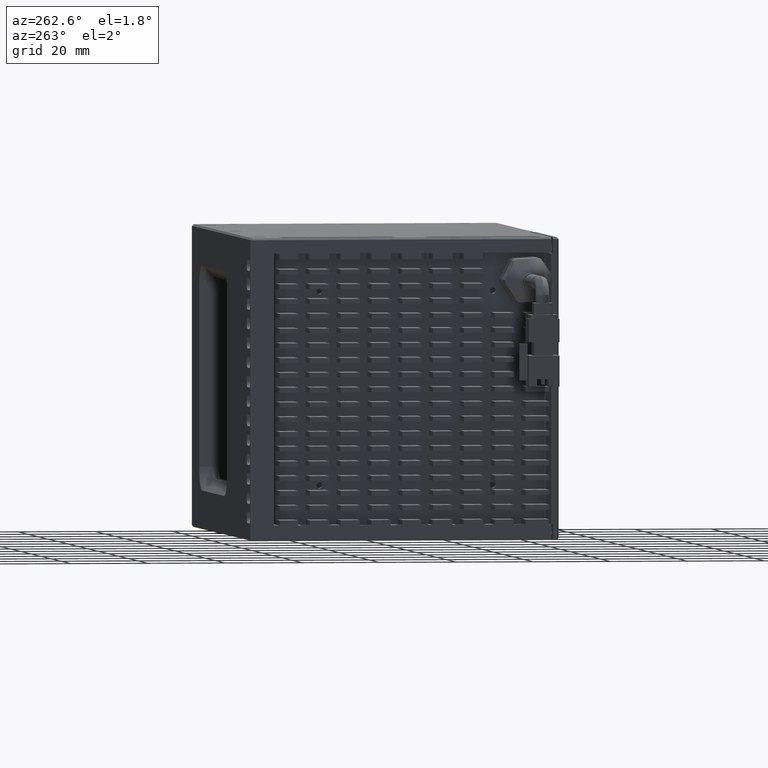
[diagram: clean part render]
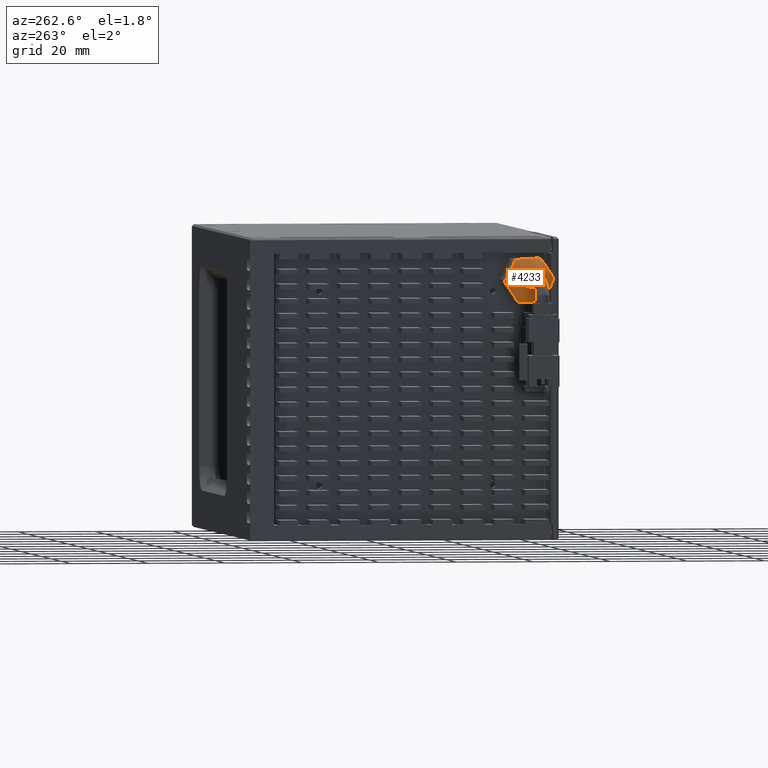
[diagram: same view with one face highlighted and labeled with its STEP entity id]
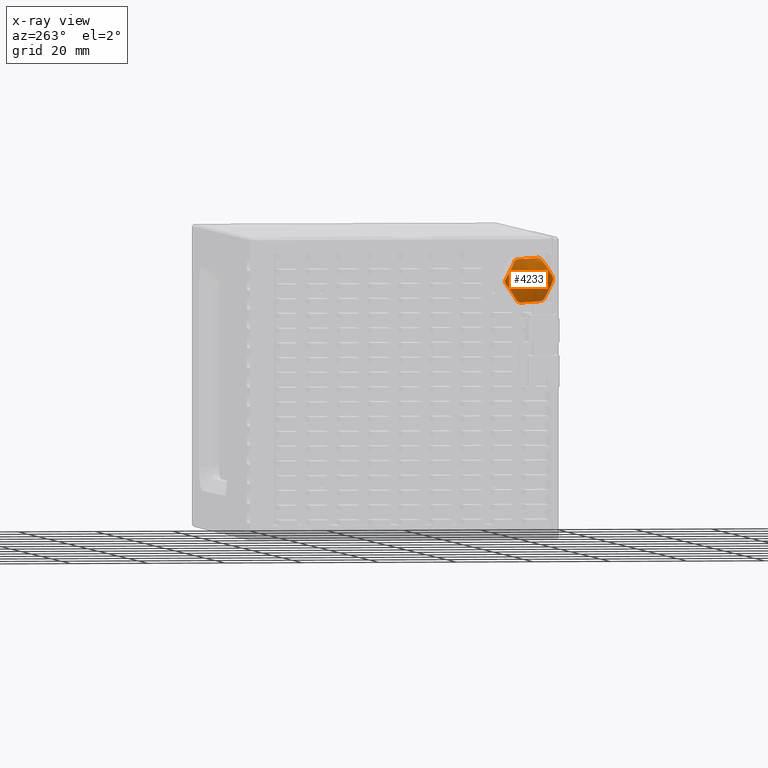
[diagram: x-ray of the same camera — body ghosted, the highlighted face saturated]
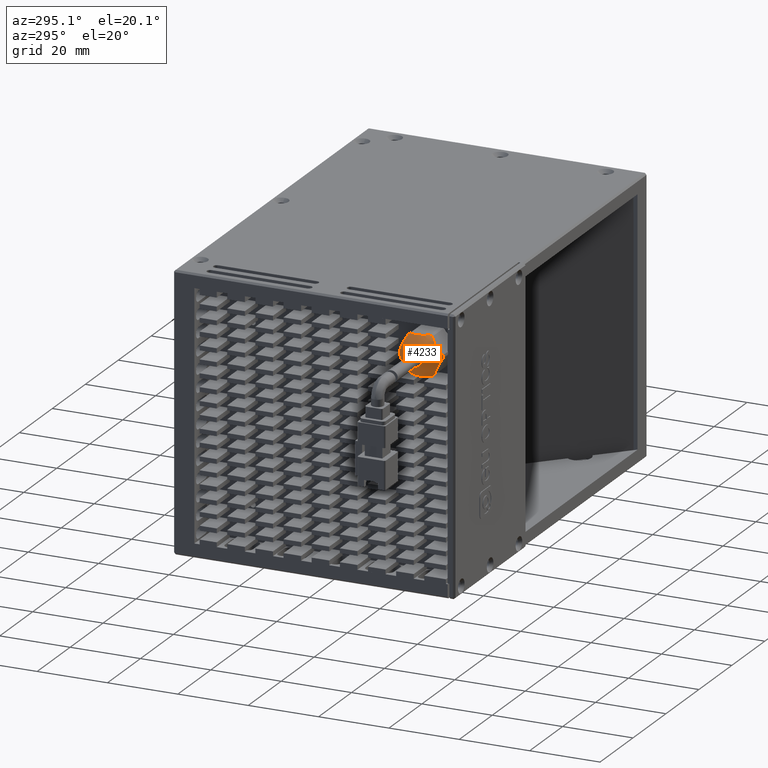
[diagram: same view with one face highlighted and labeled with its STEP entity id]
A machine part, auxiliary view. The second image highlights one B-rep face of the part: STEP entity #4233.
The next image is the same camera in x-ray: the body ghosted, the highlighted face saturated — about 17% of this face is hidden behind the body in this view.
A second angle (auxiliary view) of the same face is appended — the face is thin or edge-on in the first view.
In plain terms, the highlighted face is a freeform B-spline surface patch.
Its self-contained STEP definition (entity closure, byte-faithful):
#64 = CARTESIAN_POINT ( 'NONE',  ( -76.75381554869528600, -14.72422521989893000, 64.28832888612045300 ) ) ;
#99 = CARTESIAN_POINT ( 'NONE',  ( -76.44769987294911600, -4.050178072075575600, 67.97234626228846800 ) ) ;
#192 = CARTESIAN_POINT ( 'NONE',  ( -76.65690864948511800, -4.611442638793816300, 64.71588004137582600 ) ) ;
#1780 = EDGE_CURVE ( 'NONE', #69063, #52017, #67145, .T. ) ;
#2337 = DIRECTION ( 'NONE',  ( 1.000000000000000000, -4.890937612370272100E-029, 2.051038353574630100E-029 ) ) ;
#2984 = CARTESIAN_POINT ( 'NONE',  ( -76.73457749291901600, -8.969751151191921700, 72.55732502948490000 ) ) ;
#3228 = CARTESIAN_POINT ( 'NONE',  ( -75.85005730159738800, -7.404198714176359000, 61.23496465845508400 ) ) ;
#3353 = CARTESIAN_POINT ( 'NONE',  ( -75.85005730159738800, -6.032367455828099500, 71.97300819527390600 ) ) ;
#3457 = CARTESIAN_POINT ( 'NONE',  ( -76.60025685661690900, -11.39073852011430300, 61.48879279891314600 ) ) ;
#3516 = CARTESIAN_POINT ( 'NONE',  ( -76.65755512417865700, -13.93713603149063800, 70.91841594247139800 ) ) ;
#4233 = ADVANCED_FACE ( 'NONE', ( #4466, #31996 ), #42853, .T. ) ;
#4307 = CARTESIAN_POINT ( 'NONE',  ( -75.85005730159738800, -9.818089248277848600, 67.00000000000957800 ) ) ;
#4378 = CARTESIAN_POINT ( 'NONE',  ( -74.10379265457416400, -9.826900781596521000, 74.02239375570948700 ) ) ;
#4466 = FACE_BOUND ( 'NONE', #30105, .T. ) ;
#4614 = CARTESIAN_POINT ( 'NONE',  ( -76.56586692776141900, -13.93695367904388500, 71.98600493894630900 ) ) ;
#4861 = CARTESIAN_POINT ( 'NONE',  ( -74.10379265457439100, -9.809277714959208100, 59.97760624430888800 ) ) ;
#5001 = VERTEX_POINT ( 'NONE', #50875 ) ;
#5198 = ORIENTED_EDGE ( 'NONE', *, *, #29848, .F. ) ;
#5540 = CARTESIAN_POINT ( 'NONE',  ( -76.73457749291890200, -15.05504294943386500, 64.95601982834591600 ) ) ;
#5587 = CARTESIAN_POINT ( 'NONE',  ( -76.12654354366910100, -3.751368091434554000, 67.36925670659553600 ) ) ;
#5683 = CARTESIAN_POINT ( 'NONE',  ( -76.75381554869513000, -5.016645191130634500, 64.10699717110908600 ) ) ;
#7324 = ORIENTED_EDGE ( 'NONE', *, *, #9575, .T. ) ;
#8479 = CARTESIAN_POINT ( 'NONE',  ( -76.60025685661706500, -8.245439976440694700, 72.51120720110499500 ) ) ;
#8605 = ORIENTED_EDGE ( 'NONE', *, *, #21777, .T. ) ;
#8634 = CARTESIAN_POINT ( 'NONE',  ( -75.85005730159738800, -9.818089248277848600, 67.00000000000957800 ) ) ;
#8706 = DIRECTION ( 'NONE',  ( 1.000000000000000000, -4.890937612370272100E-029, 2.051038353574630100E-029 ) ) ;
#8771 = CARTESIAN_POINT ( 'NONE',  ( -76.14389294472809400, -15.79431419853827400, 68.12770308435284500 ) ) ;
#8853 = CIRCLE ( 'NONE', #26751, 6.249999999999514200 ) ;
#8949 = CARTESIAN_POINT ( 'NONE',  ( -76.35171132334814100, -12.09128849759717100, 61.53339772116110100 ) ) ;
#9015 = CARTESIAN_POINT ( 'NONE',  ( -76.44769987294888800, -13.54412140078687600, 71.50898447423324500 ) ) ;
#9575 = EDGE_CURVE ( 'NONE', #58879, #14542, #37052, .T. ) ;
#9803 = DIRECTION ( 'NONE',  ( 0.0000000000000000000, 0.4439600393527282600, -0.8960465855400175900 ) ) ;
#10128 = CARTESIAN_POINT ( 'NONE',  ( -77.06815567162952600, -4.410047738914443000, 73.15869144026324000 ) ) ;
#10868 = CARTESIAN_POINT ( 'NONE',  ( -75.85005730159738800, -6.032367455828099500, 71.97300819527390600 ) ) ;
#11076 = CARTESIAN_POINT ( 'NONE',  ( -76.60025685661689500, -15.37725932586498900, 65.60635062011520800 ) ) ;
#11097 = EDGE_CURVE ( 'NONE', #24467, #60753, #52148, .T. ) ;
#11099 = CARTESIAN_POINT ( 'NONE',  ( -75.85005730159738800, -3.568089282679255200, 66.99934424549553600 ) ) ;
#11191 = CARTESIAN_POINT ( 'NONE',  ( -76.73457749291880200, -5.429473644207075900, 63.48665514219698000 ) ) ;
#11691 = DIRECTION ( 'NONE',  ( 1.000000000000000000, -4.890937612370272100E-029, 2.051038353574630100E-029 ) ) ;
#11856 = CIRCLE ( 'NONE', #50832, 1.999999999999998400 ) ;
#12847 = AXIS2_PLACEMENT_3D ( 'NONE', #44584, #11691, #50140 ) ;
#14061 = CARTESIAN_POINT ( 'NONE',  ( -76.35171132334807000, -7.544889998957438900, 72.46660227885695300 ) ) ;
#14211 = DIRECTION ( 'NONE',  ( 0.0000000000000000000, 0.4439600393527247100, -0.8960465855400193700 ) ) ;
#14542 = VERTEX_POINT ( 'NONE', #22704 ) ;
#14549 = CARTESIAN_POINT ( 'NONE',  ( -75.99697512316296900, -12.74245834217448700, 61.57485854654284900 ) ) ;
#14609 = CARTESIAN_POINT ( 'NONE',  ( -76.12654354366866000, -13.17123551512016800, 72.06930628621934400 ) ) ;
#15711 = CARTESIAN_POINT ( 'NONE',  ( -83.06947262256238700, -14.42831988906798600, 68.19498467567795800 ) ) ;
#16411 = CARTESIAN_POINT ( 'NONE',  ( -76.65690864948516000, -5.236660034068496100, 70.36702825303390800 ) ) ;
#16571 = VERTEX_POINT ( 'NONE', #35816 ) ;
#16597 = CARTESIAN_POINT ( 'NONE',  ( -76.35171132334795600, -15.68890531880590100, 66.23534715836012800 ) ) ;
#16729 = CARTESIAN_POINT ( 'NONE',  ( -76.60025685661700800, -5.831568442526862100, 62.88244217880780000 ) ) ;
#16830 = ORIENTED_EDGE ( 'NONE', *, *, #58387, .T. ) ;
#17557 = CARTESIAN_POINT ( 'NONE',  ( -75.85005730159738800, -7.043339002323511600, 61.39970884038490300 ) ) ;
#18639 = CIRCLE ( 'NONE', #57304, 1.999999999999998400 ) ;
#19278 = B_SPLINE_CURVE_WITH_KNOTS ( 'NONE', 3,
 ( #22028, #54994, #66021, #33085, #192, #38614, #5683, #44103, #11191, #49668, #16729, #55233, #22268, #60737, #27815, #66252 ),
 .UNSPECIFIED., .F., .F.,
 ( 4, 2, 2, 2, 2, 2, 2, 4 ),
 ( 3.503886463667254900E-016, 0.001475511169496304000, 0.002213266754244273600, 0.002951022338992243300, 0.003688777923740212600, 0.004426533508488182000, 0.005164289093236152200, 0.005902044677984121500 ),
 .UNSPECIFIED. ) ;
#19379 = ORIENTED_EDGE ( 'NONE', *, *, #62990, .T. ) ;
#19529 = CARTESIAN_POINT ( 'NONE',  ( -75.99697512316277000, -6.893720154380086600, 72.42514145347522000 ) ) ;
#19787 = CARTESIAN_POINT ( 'NONE',  ( -76.59876150532831200, -8.951269078246145500, 61.33346862750728700 ) ) ;
#20082 = CARTESIAN_POINT ( 'NONE',  ( -75.85005730159738800, -12.94252133100853500, 72.41298662112708900 ) ) ;
#20200 = ORIENTED_EDGE ( 'NONE', *, *, #50567, .F. ) ;
#20238 = VERTEX_POINT ( 'NONE', #65461 ) ;
#21209 = CARTESIAN_POINT ( 'NONE',  ( -77.06815567162966800, -1.641939032934806300, 67.57180493125960700 ) ) ;
#21482 = DIRECTION ( 'NONE',  ( 1.000000000000000000, -4.890937612370272100E-029, 2.051038353574630100E-029 ) ) ;
#21777 = EDGE_CURVE ( 'NONE', #31689, #16571, #64177, .T. ) ;
#21900 = CARTESIAN_POINT ( 'NONE',  ( -76.14389294472826500, -13.78282124237601100, 62.38828891652531900 ) ) ;
#21933 = CARTESIAN_POINT ( 'NONE',  ( -76.75381554869520100, -4.911953276656611900, 69.71167111389840400 ) ) ;
#22028 = CARTESIAN_POINT ( 'NONE',  ( -75.85005730159738800, -3.618476921725866500, 66.20797285371894200 ) ) ;
#22134 = CARTESIAN_POINT ( 'NONE',  ( -75.99697512316277000, -15.97858411305205800, 66.82000719863323500 ) ) ;
#22268 = CARTESIAN_POINT ( 'NONE',  ( -76.35171132334825500, -6.220472427068908200, 62.29805056281093600 ) ) ;
#22704 = CARTESIAN_POINT ( 'NONE',  ( -75.85005730159738800, -12.23197978238103200, 72.76503534156312000 ) ) ;
#23201 = CARTESIAN_POINT ( 'NONE',  ( -75.85005730159738800, -6.693657165545441300, 61.58701337889276300 ) ) ;
#24263 = ORIENTED_EDGE ( 'NONE', *, *, #40021, .T. ) ;
#24467 = VERTEX_POINT ( 'NONE', #3353 ) ;
#24623 = AXIS2_PLACEMENT_3D ( 'NONE', #31287, #69749, #36806 ) ;
#24845 = CARTESIAN_POINT ( 'NONE',  ( -76.59876150532829800, -10.68490941831014900, 72.66653137251083200 ) ) ;
#24932 = AXIS2_PLACEMENT_3D ( 'NONE', #8634, #47083, #14211 ) ;
#25019 = EDGE_CURVE ( 'NONE', #24467, #66653, #64542, .T. ) ;
#25336 = CARTESIAN_POINT ( 'NONE',  ( -76.73419157656660200, -9.677904893839278000, 61.37973446877331400 ) ) ;
#25402 = CARTESIAN_POINT ( 'NONE',  ( -76.65690864948534500, -15.02473585776141000, 69.28411995864213700 ) ) ;
#25467 = CARTESIAN_POINT ( 'NONE',  ( -75.85005730159738800, -12.94252133100853500, 72.41298662112708900 ) ) ;
#25530 = ORIENTED_EDGE ( 'NONE', *, *, #57566, .T. ) ;
#26751 = AXIS2_PLACEMENT_3D ( 'NONE', #32562, #71027, #38056 ) ;
#26773 = CARTESIAN_POINT ( 'NONE',  ( -83.06947262256262800, -11.66021118308860100, 62.60809816667423200 ) ) ;
#27030 = AXIS2_PLACEMENT_3D ( 'NONE', #4307, #42758, #9803 ) ;
#27446 = CARTESIAN_POINT ( 'NONE',  ( -76.59876150532845400, -14.29203928318970400, 63.41604602599807100 ) ) ;
#27481 = CARTESIAN_POINT ( 'NONE',  ( -76.73457749291895900, -4.581135547121684600, 69.04398017167294200 ) ) ;
#27815 = CARTESIAN_POINT ( 'NONE',  ( -75.99697512316309700, -6.581963477400106100, 61.75485134791938400 ) ) ;
#28189 = ORIENTED_EDGE ( 'NONE', *, *, #1780, .F. ) ;
#29424 = AXIS2_PLACEMENT_3D ( 'NONE', #35263, #2337, #40791 ) ;
#29848 = EDGE_CURVE ( 'NONE', #33756, #16571, #64436, .T. ) ;
#30055 = VERTEX_POINT ( 'NONE', #17557 ) ;
#30105 = EDGE_LOOP ( 'NONE', ( #16830, #19379 ) ) ;
#30390 = CARTESIAN_POINT ( 'NONE',  ( -76.73419157656678600, -9.958273602716657200, 72.62026553124482600 ) ) ;
#30688 = CARTESIAN_POINT ( 'NONE',  ( -76.36751272167666100, -15.55160160601062100, 68.49241830920981000 ) ) ;
#30876 = CARTESIAN_POINT ( 'NONE',  ( -76.75422238075431400, -10.41735322456618100, 61.42681609943306900 ) ) ;
#30926 = CARTESIAN_POINT ( 'NONE',  ( -76.75381554869540000, -14.61953330542437800, 69.89300282890923200 ) ) ;
#31287 = CARTESIAN_POINT ( 'NONE',  ( -75.85005730159738800, -9.818089248277848600, 67.00000000000957800 ) ) ;
#31465 = CARTESIAN_POINT ( 'NONE',  ( -75.85005730159738800, -16.01770157482995700, 67.79202714629809600 ) ) ;
#31689 = VERTEX_POINT ( 'NONE', #53864 ) ;
#31996 = FACE_OUTER_BOUND ( 'NONE', #70539, .T. ) ;
#32249 = B_SPLINE_CURVE_WITH_KNOTS ( 'NONE', 3,
 ( #46662, #52249, #57815, #24845, #63310, #30390, #68826, #35904, #2984, #41435, #8479, #46917, #14061, #52493, #19529, #58047 ),
 .UNSPECIFIED., .F., .F.,
 ( 4, 2, 2, 2, 2, 2, 2, 4 ),
 ( 2.221529986854170700E-017, 0.001475511169496778900, 0.002213266754245153900, 0.002951022338993528800, 0.003688777923741902700, 0.004426533508490278400, 0.005164289093238651900, 0.005902044677987026300 ),
 .UNSPECIFIED. ) ;
#32253 = CARTESIAN_POINT ( 'NONE',  ( -74.10379265457440600, -4.236286113132960600, 62.73883050517483900 ) ) ;
#32562 = CARTESIAN_POINT ( 'NONE',  ( -75.85005730159738800, -9.818089248277848600, 67.00000000000957800 ) ) ;
#32728 = DIRECTION ( 'NONE',  ( 1.000000000000000000, -4.890937612370272100E-029, 2.051038353574630100E-029 ) ) ;
#32758 = CARTESIAN_POINT ( 'NONE',  ( -76.14389294472803700, -5.853357254179398300, 71.61171108349331900 ) ) ;
#32952 = CARTESIAN_POINT ( 'NONE',  ( -76.73419157656673000, -14.61528979712260300, 64.06846402223449400 ) ) ;
#32993 = CARTESIAN_POINT ( 'NONE',  ( -76.60025685661703700, -4.258919170690570700, 68.39364937990360700 ) ) ;
#33085 = CARTESIAN_POINT ( 'NONE',  ( -76.59876150532825500, -4.477319043333601200, 64.91742260151853800 ) ) ;
#33756 = VERTEX_POINT ( 'NONE', #57705 ) ;
#34010 = B_SPLINE_CURVE_WITH_KNOTS ( 'NONE', 3,
 ( #52790, #8771, #30688, #58349, #25402, #63877, #30926, #69388, #36446, #3516, #41968, #9015, #47475, #14609, #53022, #20082 ),
 .UNSPECIFIED., .F., .F.,
 ( 4, 2, 2, 2, 2, 2, 2, 4 ),
 ( 1.316562550716262900E-016, 0.001475511169496855000, 0.002213266754245232900, 0.002951022338993611200, 0.003688777923741989000, 0.004426533508490366900, 0.005164289093238745600, 0.005902044677987123400 ),
 .UNSPECIFIED. ) ;
#34128 = EDGE_CURVE ( 'NONE', #31689, #30055, #35624, .T. ) ;
#35263 = CARTESIAN_POINT ( 'NONE',  ( -75.85005730159738800, -9.818089248277848600, 67.00000000000957800 ) ) ;
#35318 = ORIENTED_EDGE ( 'NONE', *, *, #55921, .F. ) ;
#35624 = CIRCLE ( 'NONE', #12847, 6.249999999999515900 ) ;
#35816 = CARTESIAN_POINT ( 'NONE',  ( -75.85005730159738800, -12.94365713114399000, 61.58766913340578200 ) ) ;
#35904 = CARTESIAN_POINT ( 'NONE',  ( -76.75422238075458400, -9.218825271989324200, 72.57318390058496500 ) ) ;
#36390 = CARTESIAN_POINT ( 'NONE',  ( -76.65755512417852900, -11.15201360543692000, 61.47359287513879200 ) ) ;
#36446 = CARTESIAN_POINT ( 'NONE',  ( -76.73457749291901600, -14.20670485234773000, 70.51334485782166400 ) ) ;
#36806 = DIRECTION ( 'NONE',  ( 0.0000000000000000000, 0.4439600393527147200, -0.8960465855400242500 ) ) ;
#36810 = ORIENTED_EDGE ( 'NONE', *, *, #71123, .T. ) ;
#37001 = ORIENTED_EDGE ( 'NONE', *, *, #34128, .F. ) ;
#37052 = CIRCLE ( 'NONE', #27030, 6.249999999999514200 ) ;
#37521 = CARTESIAN_POINT ( 'NONE',  ( -79.08198799589982300, -10.70600932698303300, 68.79209317108907800 ) ) ;
#37529 = CARTESIAN_POINT ( 'NONE',  ( -76.56586692776141900, -11.28983948597474900, 73.29755831160703400 ) ) ;
#37774 = CARTESIAN_POINT ( 'NONE',  ( -76.56586692776195900, -8.346339010580814800, 60.70244168841143300 ) ) ;
#38056 = DIRECTION ( 'NONE',  ( 0.0000000000000000000, 0.4439600393527282600, -0.8960465855400175900 ) ) ;
#38471 = CARTESIAN_POINT ( 'NONE',  ( -76.75422238075435600, -14.94424007428330700, 64.73238587676006300 ) ) ;
#38512 = CARTESIAN_POINT ( 'NONE',  ( -76.35171132334822600, -3.947273177749614600, 67.76465284165865900 ) ) ;
#38614 = CARTESIAN_POINT ( 'NONE',  ( -76.73419157656655900, -4.880704344993992200, 64.31127044654826400 ) ) ;
#39126 = ORIENTED_EDGE ( 'NONE', *, *, #11097, .T. ) ;
#39537 = VERTEX_POINT ( 'NONE', #23201 ) ;
#40021 = EDGE_CURVE ( 'NONE', #33756, #52017, #70658, .T. ) ;
#40791 = DIRECTION ( 'NONE',  ( 0.0000000000000000000, 0.4439600393527407000, -0.8960465855400112600 ) ) ;
#41435 = CARTESIAN_POINT ( 'NONE',  ( -76.65755512417871400, -8.484164891118217300, 72.52640712487934100 ) ) ;
#41654 = CARTESIAN_POINT ( 'NONE',  ( -79.08198799589982300, -9.818089248277576800, 67.00000000000903800 ) ) ;
#41906 = CARTESIAN_POINT ( 'NONE',  ( -76.44769987294898800, -11.85996827196995300, 61.51866926350621900 ) ) ;
#41968 = CARTESIAN_POINT ( 'NONE',  ( -76.60025685661698000, -13.80461005402773400, 71.11755782121119300 ) ) ;
#42533 = CIRCLE ( 'NONE', #24932, 6.249999999999517700 ) ;
#42758 = DIRECTION ( 'NONE',  ( -1.000000000000000000, 4.890937612370272100E-029, -2.051038353574630100E-029 ) ) ;
#42853 =( BOUNDED_SURFACE ( )  B_SPLINE_SURFACE ( 3, 3, ( 
 ( #4378, #37529, #4614, #43076 ),
 ( #10128, #48586, #15711, #54142 ),
 ( #21209, #59681, #26773, #65189 ),
 ( #32253, #70744, #37774, #4861 ) ),
 .UNSPECIFIED., .F., .F., .F. ) 
 B_SPLINE_SURFACE_WITH_KNOTS ( ( 4, 4 ),
 ( 4, 4 ),
 ( 0.0000000000000000000, 1.000000000000000000 ),
 ( 0.0000000000000000000, 1.000000000000000000 ),
 .UNSPECIFIED. ) 
 GEOMETRIC_REPRESENTATION_ITEM ( )  RATIONAL_B_SPLINE_SURFACE ( (
 ( 1.000000000000000000, 0.7017694484579010100, 0.7017694484579010100, 1.000000000000000000),
 ( 0.6732171387617810200, 0.4724432201612612800, 0.4724432201612612800, 0.6732171387617810200),
 ( 0.6732171387617810200, 0.4724432201612612800, 0.4724432201612612800, 0.6732171387617810200),
 ( 1.000000000000000000, 0.7017694484579010100, 0.7017694484579010100, 1.000000000000000000) ) ) 
 REPRESENTATION_ITEM ( '' )  SURFACE ( )  );
#43076 = CARTESIAN_POINT ( 'NONE',  ( -74.10379265457416400, -15.39989238342211100, 71.26116949484385500 ) ) ;
#43979 = CARTESIAN_POINT ( 'NONE',  ( -76.65755512417857200, -15.27106038865041900, 65.39200881760110900 ) ) ;
#44019 = CARTESIAN_POINT ( 'NONE',  ( -75.99697512316299700, -3.657594383503355300, 67.17999280138532500 ) ) ;
#44103 = CARTESIAN_POINT ( 'NONE',  ( -76.75422238075428500, -5.291202398560338700, 63.69443022268256300 ) ) ;
#44584 = CARTESIAN_POINT ( 'NONE',  ( -75.85005730159738800, -9.818089248277848600, 67.00000000000957800 ) ) ;
#46662 = CARTESIAN_POINT ( 'NONE',  ( -75.85005730159738800, -12.23197978238103200, 72.76503534156312000 ) ) ;
#46917 = CARTESIAN_POINT ( 'NONE',  ( -76.44769987294903000, -7.776210224584779100, 72.48133073651186500 ) ) ;
#47083 = DIRECTION ( 'NONE',  ( 1.000000000000000000, -4.890937612370272100E-029, 2.051038353574630100E-029 ) ) ;
#47167 = DIRECTION ( 'NONE',  ( 0.0000000000000000000, -0.4439600393527282100, 0.8960465855400174800 ) ) ;
#47413 = CARTESIAN_POINT ( 'NONE',  ( -76.12654354366910100, -12.53166413827742300, 61.56143700721322900 ) ) ;
#47475 = CARTESIAN_POINT ( 'NONE',  ( -76.35171132334792800, -13.41570606948550700, 71.70194943720828500 ) ) ;
#48586 = CARTESIAN_POINT ( 'NONE',  ( -83.06947262256238700, -7.975967313467037000, 71.39190183334459100 ) ) ;
#49325 = CARTESIAN_POINT ( 'NONE',  ( -76.59876150532824100, -5.344139213365808800, 70.58395397402075800 ) ) ;
#49523 = CARTESIAN_POINT ( 'NONE',  ( -76.44769987294887400, -15.58600042447997900, 66.02765373773031900 ) ) ;
#49668 = CARTESIAN_POINT ( 'NONE',  ( -76.65755512417857200, -5.699042465064034800, 63.08158405754747400 ) ) ;
#49689 = CARTESIAN_POINT ( 'NONE',  ( -75.85005730159738800, -3.568089282679255200, 66.99934424549553600 ) ) ;
#50140 = DIRECTION ( 'NONE',  ( 0.0000000000000000000, 0.4439600393527128900, -0.8960465855400251400 ) ) ;
#50491 = ORIENTED_EDGE ( 'NONE', *, *, #55345, .T. ) ;
#50567 = EDGE_CURVE ( 'NONE', #30055, #39537, #8853, .T. ) ;
#50832 = AXIS2_PLACEMENT_3D ( 'NONE', #65644, #32728, #71179 ) ;
#50875 = CARTESIAN_POINT ( 'NONE',  ( -79.08198799589982300, -8.930169169572121000, 65.20790682892899800 ) ) ;
#51563 = CARTESIAN_POINT ( 'NONE',  ( -75.85005730159738800, -16.06808921387633400, 67.00065575452337900 ) ) ;
#52017 = VERTEX_POINT ( 'NONE', #51563 ) ;
#52148 = B_SPLINE_CURVE_WITH_KNOTS ( 'NONE', 3,
 ( #10868, #32758, #65670, #49325, #16411, #54889, #21933, #60390, #27481, #65918, #32993, #99, #38512, #5587, #44019, #11099 ),
 .UNSPECIFIED., .F., .F.,
 ( 4, 2, 2, 2, 2, 2, 2, 4 ),
 ( 1.552456366365360800E-016, 0.001475511169496506100, 0.002213266754244681700, 0.002951022338992857000, 0.003688777923741031900, 0.004426533508489208100, 0.005164289093237383000, 0.005902044677985557000 ),
 .UNSPECIFIED. ) ;
#52249 = CARTESIAN_POINT ( 'NONE',  ( -76.14389294472799500, -11.82958220444041500, 72.73941416783715400 ) ) ;
#52493 = CARTESIAN_POINT ( 'NONE',  ( -76.12654354366881600, -7.104514358276995600, 72.43856299280481900 ) ) ;
#52504 = CARTESIAN_POINT ( 'NONE',  ( -76.14389294472830700, -7.806596292116029900, 61.26058583218100800 ) ) ;
#52739 = CARTESIAN_POINT ( 'NONE',  ( -76.36751272167683200, -8.243805238252994300, 61.28842349069988400 ) ) ;
#52790 = CARTESIAN_POINT ( 'NONE',  ( -75.85005730159738800, -16.01770157482995700, 67.79202714629809600 ) ) ;
#52965 = CARTESIAN_POINT ( 'NONE',  ( -75.85005730159738800, -12.94365713114399000, 61.58766913340578200 ) ) ;
#53022 = CARTESIAN_POINT ( 'NONE',  ( -75.99697512316265600, -13.05421501915442300, 72.24514865209964400 ) ) ;
#53864 = CARTESIAN_POINT ( 'NONE',  ( -75.85005730159738800, -7.404198714176359000, 61.23496465845508400 ) ) ;
#53889 = AXIS2_PLACEMENT_3D ( 'NONE', #54393, #21482, #59939 ) ;
#54142 = CARTESIAN_POINT ( 'NONE',  ( -77.06815567162952600, -17.99423946362058400, 66.42819506875932200 ) ) ;
#54393 = CARTESIAN_POINT ( 'NONE',  ( -75.85005730159738800, -9.818089248277848600, 67.00000000000957800 ) ) ;
#54844 = CARTESIAN_POINT ( 'NONE',  ( -75.85005730159738800, -13.60381104072746800, 62.02699180474505200 ) ) ;
#54889 = CARTESIAN_POINT ( 'NONE',  ( -76.73419157656663000, -5.020888699432928700, 69.93153597778435000 ) ) ;
#54994 = CARTESIAN_POINT ( 'NONE',  ( -76.14389294472822200, -3.841864298017225700, 65.87229691566466300 ) ) ;
#55092 = CARTESIAN_POINT ( 'NONE',  ( -76.12654354366877400, -15.88481040512094600, 66.63074329342315100 ) ) ;
#55233 = CARTESIAN_POINT ( 'NONE',  ( -76.44769987294914400, -6.092057095767582800, 62.49101552578586200 ) ) ;
#55345 = EDGE_CURVE ( 'NONE', #14542, #66653, #32249, .T. ) ;
#55921 = EDGE_CURVE ( 'NONE', #20238, #60753, #42533, .T. ) ;
#57304 = AXIS2_PLACEMENT_3D ( 'NONE', #41654, #8706, #47167 ) ;
#57566 = EDGE_CURVE ( 'NONE', #69063, #58879, #34010, .T. ) ;
#57705 = CARTESIAN_POINT ( 'NONE',  ( -75.85005730159738800, -13.60381104072746800, 62.02699180474505200 ) ) ;
#57815 = CARTESIAN_POINT ( 'NONE',  ( -76.36751272167650500, -11.39237325830364400, 72.71157650931827700 ) ) ;
#58047 = CARTESIAN_POINT ( 'NONE',  ( -75.85005730159738800, -6.692521365409997500, 72.41233086661223700 ) ) ;
#58290 = CARTESIAN_POINT ( 'NONE',  ( -76.65690864948517500, -9.192871853003591600, 61.34885178835138900 ) ) ;
#58338 = VERTEX_POINT ( 'NONE', #37521 ) ;
#58349 = CARTESIAN_POINT ( 'NONE',  ( -76.59876150532839700, -15.15885945322166600, 69.08257739849935300 ) ) ;
#58387 = EDGE_CURVE ( 'NONE', #58338, #5001, #11856, .T. ) ;
#58879 = VERTEX_POINT ( 'NONE', #25467 ) ;
#59681 = CARTESIAN_POINT ( 'NONE',  ( -83.06947262256265700, -5.207858607487499300, 65.80501532434092800 ) ) ;
#59939 = DIRECTION ( 'NONE',  ( 0.0000000000000000000, 0.4439600393527200500, -0.8960465855400215900 ) ) ;
#60354 = CARTESIAN_POINT ( 'NONE',  ( -76.36751272167691700, -13.97731759598522000, 62.78084179990123200 ) ) ;
#60390 = CARTESIAN_POINT ( 'NONE',  ( -76.75422238075439900, -4.691938422272225600, 69.26761412325878100 ) ) ;
#60586 = CARTESIAN_POINT ( 'NONE',  ( -75.85005730159738800, -16.06808921387633400, 67.00065575452337900 ) ) ;
#60737 = CARTESIAN_POINT ( 'NONE',  ( -76.12654354366925700, -6.464942981434163000, 61.93069371380003900 ) ) ;
#60753 = VERTEX_POINT ( 'NONE', #49689 ) ;
#61601 = CARTESIAN_POINT ( 'NONE',  ( -75.85005730159738800, -6.692521365409997500, 72.41233086661223700 ) ) ;
#62990 = EDGE_CURVE ( 'NONE', #5001, #58338, #18639, .T. ) ;
#63310 = CARTESIAN_POINT ( 'NONE',  ( -76.65690864948523100, -10.44330664355259600, 72.65114821166672200 ) ) ;
#63816 = CARTESIAN_POINT ( 'NONE',  ( -76.75381554869521500, -9.922781162752153600, 61.39532605722008200 ) ) ;
#63877 = CARTESIAN_POINT ( 'NONE',  ( -76.73419157656680100, -14.75547415156109200, 69.68872955346989800 ) ) ;
#64177 = B_SPLINE_CURVE_WITH_KNOTS ( 'NONE', 3,
 ( #3228, #52504, #52739, #19787, #58290, #25336, #63816, #30876, #69324, #36390, #3457, #41906, #8949, #47413, #14549, #52965 ),
 .UNSPECIFIED., .F., .F.,
 ( 4, 2, 2, 2, 2, 2, 2, 4 ),
 ( 4.686266453758421300E-016, 0.001475511169496403100, 0.002213266754244369800, 0.002951022338992336600, 0.003688777923740303300, 0.004426533508488268700, 0.005164289093236235400, 0.005902044677984202200 ),
 .UNSPECIFIED. ) ;
#64436 = CIRCLE ( 'NONE', #53889, 6.249999999999516800 ) ;
#64542 = CIRCLE ( 'NONE', #29424, 6.249999999999519500 ) ;
#65189 = CARTESIAN_POINT ( 'NONE',  ( -77.06815567162965400, -15.22613075764127400, 60.84130855975554700 ) ) ;
#65461 = CARTESIAN_POINT ( 'NONE',  ( -75.85005730159738800, -3.618476921725866500, 66.20797285371894200 ) ) ;
#65644 = CARTESIAN_POINT ( 'NONE',  ( -79.08198799589982300, -9.818089248277576800, 67.00000000000903800 ) ) ;
#65670 = CARTESIAN_POINT ( 'NONE',  ( -76.36751272167654700, -5.658860900570277700, 71.21915820011759000 ) ) ;
#65814 = ORIENTED_EDGE ( 'NONE', *, *, #25019, .F. ) ;
#65881 = CARTESIAN_POINT ( 'NONE',  ( -76.65690864948533100, -14.39951846248703200, 63.63297174698492900 ) ) ;
#65918 = CARTESIAN_POINT ( 'NONE',  ( -76.65755512417865700, -4.365118107905129100, 68.60799118241770600 ) ) ;
#66021 = CARTESIAN_POINT ( 'NONE',  ( -76.36751272167669000, -4.084576890544851400, 65.50758169080775400 ) ) ;
#66252 = CARTESIAN_POINT ( 'NONE',  ( -75.85005730159738800, -6.693657165545441300, 61.58701337889276300 ) ) ;
#66653 = VERTEX_POINT ( 'NONE', #61601 ) ;
#67145 = CIRCLE ( 'NONE', #24623, 6.249999999999514200 ) ;
#68826 = CARTESIAN_POINT ( 'NONE',  ( -76.75381554869544200, -9.713397333803632300, 72.60467394279800100 ) ) ;
#69063 = VERTEX_POINT ( 'NONE', #31465 ) ;
#69324 = CARTESIAN_POINT ( 'NONE',  ( -76.73457749291877400, -10.66642734536347200, 61.44267497053317600 ) ) ;
#69388 = CARTESIAN_POINT ( 'NONE',  ( -76.75422238075449900, -14.34497609799451100, 70.30556977733591900 ) ) ;
#69749 = DIRECTION ( 'NONE',  ( 1.000000000000000000, -4.890937612370272100E-029, 2.051038353574630100E-029 ) ) ;
#70539 = EDGE_LOOP ( 'NONE', ( #35318, #36810, #20200, #37001, #8605, #5198, #24263, #28189, #25530, #7324, #50491, #65814, #39126 ) ) ;
#70658 = B_SPLINE_CURVE_WITH_KNOTS ( 'NONE', 3,
 ( #54844, #21900, #60354, #27446, #65881, #32952, #64, #38471, #5540, #43979, #11076, #49523, #16597, #55092, #22134, #60586 ),
 .UNSPECIFIED., .F., .F.,
 ( 4, 2, 2, 2, 2, 2, 2, 4 ),
 ( 3.659238710217230100E-016, 0.001475511169496675900, 0.002213266754244846900, 0.002951022338993018300, 0.003688777923741189700, 0.004426533508489360700, 0.005164289093237532100, 0.005902044677985703600 ),
 .UNSPECIFIED. ) ;
#70744 = CARTESIAN_POINT ( 'NONE',  ( -76.56586692776194500, -5.699224817511364400, 62.01399506107230100 ) ) ;
#71027 = DIRECTION ( 'NONE',  ( 1.000000000000000000, -4.890937612370272100E-029, 2.051038353574630100E-029 ) ) ;
#71123 = EDGE_CURVE ( 'NONE', #20238, #39537, #19278, .T. ) ;
#71179 = DIRECTION ( 'NONE',  ( 0.0000000000000000000, -0.4439600393527282100, 0.8960465855400174800 ) ) ;